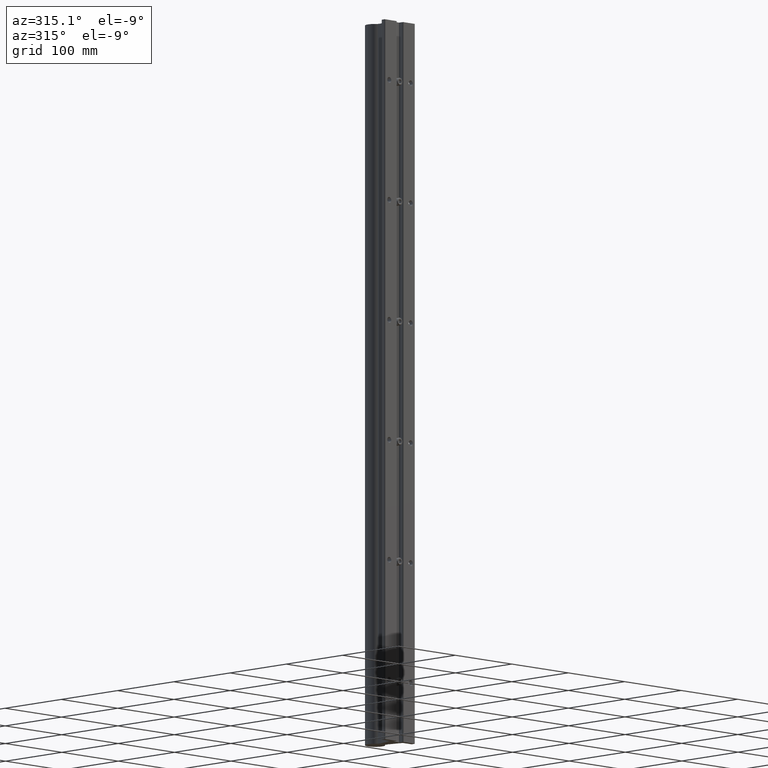
[diagram: clean part render]
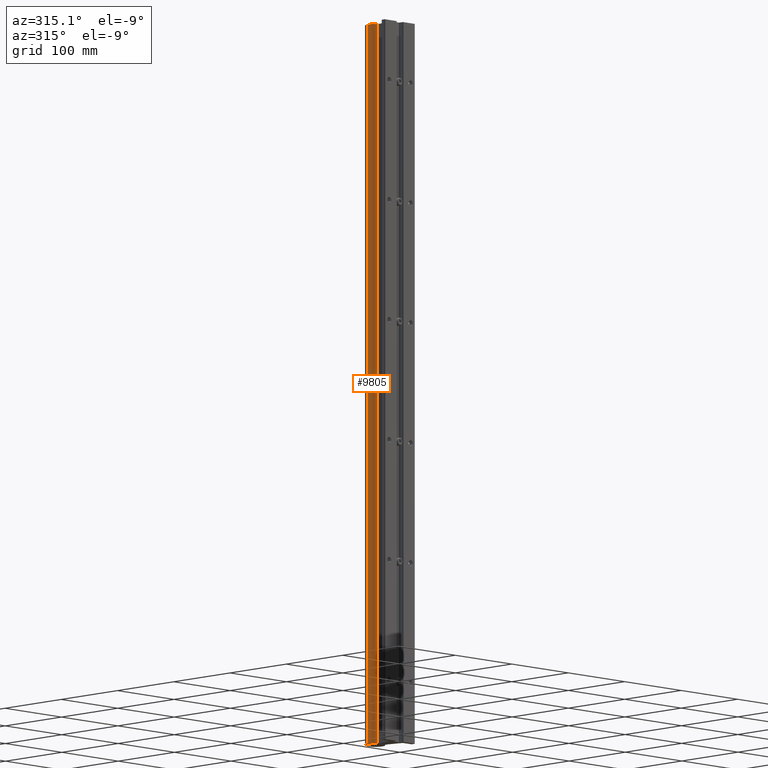
[diagram: same view with one face highlighted and labeled with its STEP entity id]
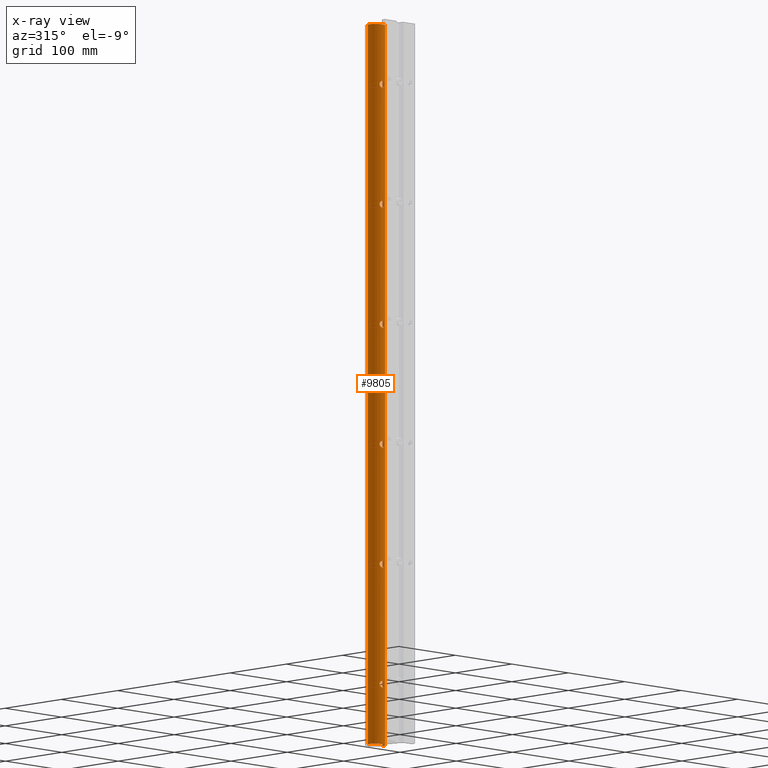
[diagram: x-ray of the same camera — body ghosted, the highlighted face saturated]
A machine part, auxiliary view. The second image highlights one B-rep face of the part: STEP entity #9805.
The next image is the same camera in x-ray: the body ghosted, the highlighted face saturated — about 0% of this face is hidden behind the body in this view.
In plain terms, the highlighted cylindrical surface (edge-blend (fillet) strip) has radius 12.7 mm, axis along (0, 0, 1).
Its self-contained STEP definition (entity closure, byte-faithful):
#4 = CARTESIAN_POINT ( 'NONE',  ( -0.1178406157585082242, 1.264028440204093995, -2.896511160095683213 ) ) ;
#57 = EDGE_CURVE ( 'NONE', #9999, #5945, #6915, .T. ) ;
#60 = CARTESIAN_POINT ( 'NONE',  ( 0.1514646482530656868, 1.273488789680645938, -9.040701736055424931 ) ) ;
#214 = CARTESIAN_POINT ( 'NONE',  ( -0.01025724752596621561, 1.249999999999999778, -2.843499999999999694 ) ) ;
#236 = CARTESIAN_POINT ( 'NONE',  ( -0.1034063837601288116, 1.260753755813636134, -14.88208702147456819 ) ) ;
#291 = CARTESIAN_POINT ( 'NONE',  ( -8.196081754135579170E-17, 1.250000000000000000, -3.156499999999999417 ) ) ;
#311 = CARTESIAN_POINT ( 'NONE',  ( 2.101067853164528571E-15, 1.249999999999999778, -14.84349999999999881 ) ) ;
#355 = VERTEX_POINT ( 'NONE', #7696 ) ;
#365 = AXIS2_PLACEMENT_3D ( 'NONE', #4199, #6528, #6309 ) ;
#369 = B_SPLINE_CURVE_WITH_KNOTS ( 'NONE', 3,
 ( #5827, #10268, #5685, #7218, #11482, #515, #751, #4642, #6157, #4961, #4711, #9233, #10483, #6513, #11835, #5247, #7416, #11689, #10704, #60, #951, #4183, #3271, #2113, #2245, #13737, #4112, #12581, #7564, #8319, #3007, #4041, #1164, #5177 ),
 .UNSPECIFIED., .F., .F.,
 ( 4, 2, 2, 2, 2, 2, 2, 2, 2, 2, 2, 2, 2, 2, 2, 2, 4 ),
 ( 0.01250706719454411538, 0.01328855145386468109, 0.01407003571318524854, 0.01485151997250581425, 0.01563300423182637996, 0.01641448849114694741, 0.01719597275046751139, 0.01797745700978807884, 0.01875894126910864282, 0.01954042552842921027, 0.02032190978774977425, 0.02110339404707034516, 0.02188487830639090914, 0.02266636256571147312, 0.02344784682503204057, 0.02422933108435260802, 0.02501081534367317200 ),
 .UNSPECIFIED. ) ;
#376 = VERTEX_POINT ( 'NONE', #10829 ) ;
#385 = CARTESIAN_POINT ( 'NONE',  ( -0.01041085814125163739, 1.249999999999999778, -15.15649999999999231 ) ) ;
#396 = CARTESIAN_POINT ( 'NONE',  ( 0.06952565123151821513, 1.254766182063603130, -2.859419500684037274 ) ) ;
#451 = CARTESIAN_POINT ( 'NONE',  ( -0.07859880021001178219, 1.256141287737158052, -15.13571548614485529 ) ) ;
#472 = B_SPLINE_CURVE_WITH_KNOTS ( 'NONE', 3,
 ( #4205, #7239, #8343, #9382, #11503, #3992, #844, #1939, #6181, #7170, #8485, #2009, #13609, #6248, #10436, #8274, #12530, #11426, #12737, #6103, #4062, #11577, #12605, #975, #5198, #9445, #6316, #7377, #13682, #4135, #10582, #1041, #5264, #3161 ),
 .UNSPECIFIED., .F., .F.,
 ( 4, 2, 2, 2, 2, 2, 2, 2, 2, 2, 2, 2, 2, 2, 2, 2, 4 ),
 ( 4.790945391493840901E-18, 0.0007816916996590133910, 0.001563383399318022011, 0.002345075098977030415, 0.003126766798636039252, 0.003908458498295048524, 0.004690150197954056493, 0.005471841897613065331, 0.006253533597272074168, 0.007035225296931083006, 0.007816916996590091843, 0.008598608696249100680, 0.009380300395908107783, 0.01016199209556711662, 0.01094368379522612546, 0.01172537549488513429, 0.01250706719454414313 ),
 .UNSPECIFIED. ) ;
#501 = EDGE_CURVE ( 'NONE', #3565, #376, #8541, .T. ) ;
#515 = CARTESIAN_POINT ( 'NONE',  ( 0.06952565123151799309, 1.254766182063602908, -8.859419500684031945 ) ) ;
#520 = CARTESIAN_POINT ( 'NONE',  ( 0.04086650447296551886, 1.251569018025717961, -26.84857532027489668 ) ) ;
#533 = CARTESIAN_POINT ( 'NONE',  ( -0.09557294541033080348, 1.259144068898282232, -26.87565508353720389 ) ) ;
#564 = EDGE_CURVE ( 'NONE', #8241, #6719, #2088, .T. ) ;
#616 = CARTESIAN_POINT ( 'NONE',  ( -0.1405791870913257469, 1.270151909297080328, -21.06952293869874282 ) ) ;
#683 = CARTESIAN_POINT ( 'NONE',  ( -0.04072955494209304361, 1.251560002186336895, -21.15145406903309322 ) ) ;
#712 = CARTESIAN_POINT ( 'NONE',  ( 0.07859642925546669878, 1.256141075875272017, -27.13571597063193863 ) ) ;
#736 = CARTESIAN_POINT ( 'NONE',  ( 0.1034388360803593782, 1.260760536231932738, -20.88211457586994158 ) ) ;
#751 = CARTESIAN_POINT ( 'NONE',  ( 0.07868335296973141824, 1.256155164790862200, -8.864335404507160732 ) ) ;
#769 = CARTESIAN_POINT ( 'NONE',  ( 0.1554904432202414699, 1.274787210507110968, -27.02051567828572942 ) ) ;
#777 = CARTESIAN_POINT ( 'NONE',  ( -0.05070669661409964168, 1.252486482524820754, -9.148412155886937569 ) ) ;
#785 = CARTESIAN_POINT ( 'NONE',  ( -0.1243271559051695452, 1.265667634256130381, -27.09560697465091650 ) ) ;
#791 = CARTESIAN_POINT ( 'NONE',  ( 0.1244033045994818593, 1.265688150019277591, -32.90450683583762270 ) ) ;
#842 = CARTESIAN_POINT ( 'NONE',  ( 0.1514646482530662419, 1.273488789680646827, -15.04070173605542315 ) ) ;
#844 = CARTESIAN_POINT ( 'NONE',  ( -0.07859880021000974215, 1.256141287737158052, -33.13571548614484641 ) ) ;
#861 = CARTESIAN_POINT ( 'NONE',  ( 0.1554904432202414699, 1.274787210507110968, -33.02051567828571166 ) ) ;
#864 = VERTEX_POINT ( 'NONE', #9384 ) ;
#895 = ORIENTED_EDGE ( 'NONE', *, *, #13136, .F. ) ;
#906 = CARTESIAN_POINT ( 'NONE',  ( 0.05075370098592649898, 1.252491623421628786, -15.14839479271959810 ) ) ;
#912 = CARTESIAN_POINT ( 'NONE',  ( 0.1405814577952105016, 1.270152509823489595, -3.069521682105984084 ) ) ;
#914 = CARTESIAN_POINT ( 'NONE',  ( -0.1034063837601280900, 1.260753755813636134, -8.882087021474569966 ) ) ;
#926 = CARTESIAN_POINT ( 'NONE',  ( 0.02064213769754207756, 1.250324616063695160, -33.15547156390899630 ) ) ;
#930 = CARTESIAN_POINT ( 'NONE',  ( 0.1035280489591251241, 1.260780212130743649, -21.11780100056908793 ) ) ;
#951 = CARTESIAN_POINT ( 'NONE',  ( 0.1484198940517174325, 1.272518801255799081, -9.050674901167628406 ) ) ;
#972 = CARTESIAN_POINT ( 'NONE',  ( 0.1178830997218138499, 1.264038663556757092, -14.89655851493738048 ) ) ;
#975 = CARTESIAN_POINT ( 'NONE',  ( -0.1243799828838272753, 1.265682033343105806, -32.90447476161844520 ) ) ;
#1036 = FACE_BOUND ( 'NONE', #12386, .T. ) ;
#1041 = CARTESIAN_POINT ( 'NONE',  ( -0.02063932115101448778, 1.250323351658012339, -32.84452419570753534 ) ) ;
#1071 = CARTESIAN_POINT ( 'NONE',  ( 0.05075370098592741491, 1.252491623421628786, -21.14839479271958922 ) ) ;
#1120 = CARTESIAN_POINT ( 'NONE',  ( -0.1514432164739248077, 1.273481935867222692, -9.040787736699337884 ) ) ;
#1146 = CARTESIAN_POINT ( 'NONE',  ( 2.101067853054212290E-15, 1.249999999999999778, -20.84349999999999525 ) ) ;
#1164 = CARTESIAN_POINT ( 'NONE',  ( 0.01040809537437410379, 1.250000000000000222, -9.156499999999999417 ) ) ;
#1174 = CARTESIAN_POINT ( 'NONE',  ( -0.1484625484838921483, 1.272531726863997514, -2.949430081437836915 ) ) ;
#1189 = CARTESIAN_POINT ( 'NONE',  ( -0.1356857239005710147, 1.268727044912736801, -14.92135627399715503 ) ) ;
#1220 = CARTESIAN_POINT ( 'NONE',  ( -1.942672101824457373E-16, 1.250000000000000000, -27.15650000000000119 ) ) ;
#1224 = CARTESIAN_POINT ( 'NONE',  ( 0.000000000000000000, 1.750000000000000000, -36.00000000000000000 ) ) ;
#1279 = CARTESIAN_POINT ( 'NONE',  ( 0.000000000000000000, 1.750000000000000000, 0.000000000000000000 ) ) ;
#1289 = CARTESIAN_POINT ( 'NONE',  ( 2.101067853054212290E-15, 1.249999999999999778, -20.84349999999999525 ) ) ;
#1295 = CARTESIAN_POINT ( 'NONE',  ( -0.1034063837601284508, 1.260753755813636134, -2.882087021474569521 ) ) ;
#1420 = DIRECTION ( 'NONE',  ( 0.000000000000000000, 0.000000000000000000, 1.000000000000000000 ) ) ;
#1524 = CARTESIAN_POINT ( 'NONE',  ( 0.06952565123151815962, 1.254766182063603353, -26.85941950068404083 ) ) ;
#1541 = CARTESIAN_POINT ( 'NONE',  ( -0.1514432164739250020, 1.273481935867222914, -27.04078773669933966 ) ) ;
#1595 = CARTESIAN_POINT ( 'NONE',  ( 0.02064213769754207756, 1.250324616063695160, -27.15547156390901051 ) ) ;
#1609 = CARTESIAN_POINT ( 'NONE',  ( -0.09556328476573421049, 1.259141713243884242, -27.12435482772603024 ) ) ;
#1665 = CARTESIAN_POINT ( 'NONE',  ( 0.1564999516228305632, 1.275123421148132152, -26.98968554117874064 ) ) ;
#1681 = CARTESIAN_POINT ( 'NONE',  ( -0.1034063837601268826, 1.260753755813635690, -26.88208702147456464 ) ) ;
#1691 = CARTESIAN_POINT ( 'NONE',  ( 0.02055646357326336437, 1.250319155074914645, -20.84451065431017369 ) ) ;
#1733 = AXIS2_PLACEMENT_3D ( 'NONE', #1279, #3611, #7710 ) ;
#1735 = CARTESIAN_POINT ( 'NONE',  ( 0.1357558474040482521, 1.268746003186348448, -27.07853782208754367 ) ) ;
#1751 = CARTESIAN_POINT ( 'NONE',  ( -0.1356857239005700433, 1.268727044912736357, -26.92135627399716213 ) ) ;
#1759 = ORIENTED_EDGE ( 'NONE', *, *, #57, .T. ) ;
#1767 = CARTESIAN_POINT ( 'NONE',  ( -0.1554870185490529744, 1.274786047844190362, -21.02055418068784576 ) ) ;
#1803 = CARTESIAN_POINT ( 'NONE',  ( 0.1178679316663036047, 1.264035795095121539, -3.103451840684775753 ) ) ;
#1817 = CARTESIAN_POINT ( 'NONE',  ( 0.06952565123151815962, 1.254766182063603353, -32.85941950068403372 ) ) ;
#1836 = CARTESIAN_POINT ( 'NONE',  ( -0.02063512757121567856, 1.250324585779543529, -21.15547161535978660 ) ) ;
#1866 = CARTESIAN_POINT ( 'NONE',  ( 0.1554580701843658042, 1.274776625798298646, -14.97926953882025103 ) ) ;
#1872 = CARTESIAN_POINT ( 'NONE',  ( -0.1243799828838284272, 1.265682033343106694, -8.904474761618457634 ) ) ;
#1885 = CARTESIAN_POINT ( 'NONE',  ( 0.1565000483737305215, 1.275123453033293330, -33.01031299072741376 ) ) ;
#1901 = CARTESIAN_POINT ( 'NONE',  ( -0.04087253725953229888, 1.251570295654617748, -20.84857958197148520 ) ) ;
#1937 = CARTESIAN_POINT ( 'NONE',  ( 0.1178679316663031468, 1.264035795095121539, -15.10345184068477487 ) ) ;
#1939 = CARTESIAN_POINT ( 'NONE',  ( -0.09556328476573421049, 1.259141713243884242, -33.12435482772602313 ) ) ;
#1958 = CARTESIAN_POINT ( 'NONE',  ( 0.09554229024632261702, 1.259137792854418958, -33.12436998894735041 ) ) ;
#1963 = CARTESIAN_POINT ( 'NONE',  ( 0.01040809537437405001, 1.250000000000000222, -21.15650000000000119 ) ) ;
#1973 = CARTESIAN_POINT ( 'NONE',  ( -0.06949739479790366381, 1.254762348453770882, -20.85940611100637554 ) ) ;
#2008 = CARTESIAN_POINT ( 'NONE',  ( 0.1484607547724579590, 1.272531118639974146, -14.94942246475074121 ) ) ;
#2009 = CARTESIAN_POINT ( 'NONE',  ( -0.1357655045532583094, 1.268748703922866206, -33.07852173629490267 ) ) ;
#2029 = EDGE_LOOP ( 'NONE', ( #6135, #10550, #4209, #895 ) ) ;
#2079 = CARTESIAN_POINT ( 'NONE',  ( -0.06963320848488399606, 1.254780770336873408, -9.140529546262069260 ) ) ;
#2088 = LINE ( 'NONE', #6342, #6292 ) ;
#2113 = CARTESIAN_POINT ( 'NONE',  ( 0.1243211416543388154, 1.265666113831307893, -9.095614294644716935 ) ) ;
#2126 = CARTESIAN_POINT ( 'NONE',  ( -0.06949739479790265073, 1.254762348453770437, -2.859406111006373319 ) ) ;
#2128 = FACE_OUTER_BOUND ( 'NONE', #2029, .T. ) ;
#2141 = CARTESIAN_POINT ( 'NONE',  ( -0.1565048378191059575, 1.275125031439485079, -8.989792767501070259 ) ) ;
#2245 = CARTESIAN_POINT ( 'NONE',  ( 0.1178679316663040350, 1.264035795095121539, -9.103451840684776641 ) ) ;
#2247 = CARTESIAN_POINT ( 'NONE',  ( 0.09560078652235465269, 1.259149431177259970, -14.87567605974269114 ) ) ;
#2260 = CARTESIAN_POINT ( 'NONE',  ( -0.1243799828838284688, 1.265682033343106694, -2.904474761618458079 ) ) ;
#2278 = CARTESIAN_POINT ( 'NONE',  ( -0.1565048378191059020, 1.275125031439485079, -14.98979276750107381 ) ) ;
#2352 = CARTESIAN_POINT ( 'NONE',  ( -0.01025724752596618612, 1.249999999999999778, -14.84350000000000414 ) ) ;
#2395 = EDGE_CURVE ( 'NONE', #10339, #13125, #8354, .T. ) ;
#2403 = CARTESIAN_POINT ( 'NONE',  ( -0.1405791870913261077, 1.270151909297080550, -3.069522938698746373 ) ) ;
#2422 = CARTESIAN_POINT ( 'NONE',  ( -0.07866204735017254257, 1.256151829709960754, -14.86432344177705289 ) ) ;
#2557 = CARTESIAN_POINT ( 'NONE',  ( 0.1484607547724579313, 1.272531118639973924, -26.94942246475074299 ) ) ;
#2562 = CARTESIAN_POINT ( 'NONE',  ( 0.1405366595157273302, 1.270139003765712316, -2.930371484924218617 ) ) ;
#2572 = CARTESIAN_POINT ( 'NONE',  ( -0.1035399364845294296, 1.260782774289252117, -27.11779025189875014 ) ) ;
#2583 = LINE ( 'NONE', #5579, #9837 ) ;
#2630 = CARTESIAN_POINT ( 'NONE',  ( 0.1514646482530661031, 1.273488789680646605, -3.040701736055423599 ) ) ;
#2639 = CARTESIAN_POINT ( 'NONE',  ( -0.01025724752596624684, 1.249999999999999778, -26.84349999999999881 ) ) ;
#2692 = CARTESIAN_POINT ( 'NONE',  ( 0.02055646357326355519, 1.250319155074914645, -2.844510654310176356 ) ) ;
#2722 = CARTESIAN_POINT ( 'NONE',  ( -0.1484625484838912601, 1.272531726863997514, -20.94943008143783558 ) ) ;
#2763 = CARTESIAN_POINT ( 'NONE',  ( 0.04086650447296554661, 1.251569018025717961, -2.848575320274898459 ) ) ;
#2772 = CARTESIAN_POINT ( 'NONE',  ( -0.04072955494209304361, 1.251560002186336895, -27.15145406903309322 ) ) ;
#2789 = CARTESIAN_POINT ( 'NONE',  ( -0.1035399364845294296, 1.260782774289252117, -21.11779025189873948 ) ) ;
#2824 = CARTESIAN_POINT ( 'NONE',  ( 0.02055646357326336437, 1.250319155074914645, -26.84451065431018435 ) ) ;
#2839 = CARTESIAN_POINT ( 'NONE',  ( -0.1565048378191056799, 1.275125031439485523, -26.98979276750107559 ) ) ;
#2893 = CARTESIAN_POINT ( 'NONE',  ( 0.05065284700690732278, 1.252481518235631697, -14.85157162650899032 ) ) ;
#2901 = CARTESIAN_POINT ( 'NONE',  ( 0.04076219009262842252, 1.251562410105868883, -3.151446191407679898 ) ) ;
#2902 = CARTESIAN_POINT ( 'NONE',  ( -0.1243271559051704334, 1.265667634256130603, -9.095606974650911170 ) ) ;
#2931 = VERTEX_POINT ( 'NONE', #3344 ) ;
#2957 = CARTESIAN_POINT ( 'NONE',  ( 0.07868335296973211213, 1.256155164790861978, -14.86433540450716251 ) ) ;
#2978 = EDGE_LOOP ( 'NONE', ( #8011, #8530 ) ) ;
#2980 = CARTESIAN_POINT ( 'NONE',  ( 0.1178679316663034105, 1.264035795095121095, -33.10345184068476954 ) ) ;
#3007 = CARTESIAN_POINT ( 'NONE',  ( 0.04076219009262815191, 1.251562410105868883, -9.151446191407679009 ) ) ;
#3025 = CARTESIAN_POINT ( 'NONE',  ( 0.01025452552329445509, 1.250000000000000000, -14.84349999999999881 ) ) ;
#3030 = CARTESIAN_POINT ( 'NONE',  ( 0.1035280489591252906, 1.260780212130743649, -3.117801000569084824 ) ) ;
#3083 = ORIENTED_EDGE ( 'NONE', *, *, #5217, .T. ) ;
#3101 = CARTESIAN_POINT ( 'NONE',  ( -0.1035399364845299847, 1.260782774289252561, -9.117790251898744813 ) ) ;
#3111 = CARTESIAN_POINT ( 'NONE',  ( 0.09560078652235348695, 1.259149431177259970, -32.87567605974268758 ) ) ;
#3161 = CARTESIAN_POINT ( 'NONE',  ( 2.101067853054212290E-15, 1.249999999999999778, -32.84349999999999170 ) ) ;
#3169 = CARTESIAN_POINT ( 'NONE',  ( -0.02063932115101512615, 1.250323351658012783, -8.844524195707544223 ) ) ;
#3220 = CARTESIAN_POINT ( 'NONE',  ( -0.1514432164739248077, 1.273481935867222692, -3.040787736699337440 ) ) ;
#3271 = CARTESIAN_POINT ( 'NONE',  ( 0.1357558474040492513, 1.268746003186348670, -9.078537822087536568 ) ) ;
#3273 = CARTESIAN_POINT ( 'NONE',  ( 0.1514350073922275663, 1.273479375567842187, -14.95920291502707578 ) ) ;
#3285 = CARTESIAN_POINT ( 'NONE',  ( -0.1564951272782237335, 1.275121831240573211, -3.010355046800683887 ) ) ;
#3307 = CARTESIAN_POINT ( 'NONE',  ( -0.09556328476573608399, 1.259141713243884686, -15.12435482772602668 ) ) ;
#3344 = CARTESIAN_POINT ( 'NONE',  ( 2.101067853054212290E-15, 1.249999999999999778, -26.84349999999999881 ) ) ;
#3349 = CARTESIAN_POINT ( 'NONE',  ( 0.06952565123151853432, 1.254766182063603353, -14.85941950068403727 ) ) ;
#3370 = CARTESIAN_POINT ( 'NONE',  ( -0.05070669661409979434, 1.252486482524820977, -15.14841215588693935 ) ) ;
#3466 = B_SPLINE_CURVE_WITH_KNOTS ( 'NONE', 3,
 ( #291, #4338, #7727, #13004, #11706, #8743, #6454, #6605, #12801, #9791, #5397, #12870, #2403, #9579, #3220, #7506, #3285, #5526, #7578, #10860, #1174, #11846, #4473, #2260, #4, #1295, #5464, #6385, #2126, #6527, #10786, #9723, #214, #4411 ),
 .UNSPECIFIED., .F., .F.,
 ( 4, 2, 2, 2, 2, 2, 2, 2, 2, 2, 2, 2, 2, 2, 2, 2, 4 ),
 ( 2.021287075230293743E-18, 0.0007816916996590075363, 0.001563383399318012904, 0.002345075098977018706, 0.003126766798636024074, 0.003908458498295029442, 0.004690150197954034809, 0.005471841897613040177, 0.006253533597272045545, 0.007035225296931050913, 0.007816916996590057148, 0.008598608696249062516, 0.009380300395908067884, 0.01016199209556707325, 0.01094368379522607862, 0.01172537549488508399, 0.01250706719454408936 ),
 .UNSPECIFIED. ) ;
#3516 = CARTESIAN_POINT ( 'NONE',  ( -0.1357655045532590310, 1.268748703922866650, -15.07852173629491510 ) ) ;
#3520 = CARTESIAN_POINT ( 'NONE',  ( 2.101067853054212290E-15, 1.249999999999999778, -26.84349999999999881 ) ) ;
#3565 = VERTEX_POINT ( 'NONE', #12144 ) ;
#3587 = CARTESIAN_POINT ( 'NONE',  ( 0.1178830997218137805, 1.264038663556757758, -2.896558514937383144 ) ) ;
#3594 = CARTESIAN_POINT ( 'NONE',  ( -0.1357655045532583094, 1.268748703922866206, -27.07852173629490977 ) ) ;
#3611 = DIRECTION ( 'NONE',  ( 0.000000000000000000, 0.000000000000000000, 1.000000000000000000 ) ) ;
#3665 = EDGE_CURVE ( 'NONE', #13125, #10339, #369, .T. ) ;
#3743 = CARTESIAN_POINT ( 'NONE',  ( 0.05065284700690701747, 1.252481518235631697, -20.85157162650898854 ) ) ;
#3753 = CARTESIAN_POINT ( 'NONE',  ( -0.1554704722570752484, 1.274780669119014220, -20.97934747421100354 ) ) ;
#3800 = CARTESIAN_POINT ( 'NONE',  ( -0.1178406157585067809, 1.264028440204093995, -26.89651116009568810 ) ) ;
#3820 = EDGE_CURVE ( 'NONE', #5945, #9999, #9974, .T. ) ;
#3821 = CARTESIAN_POINT ( 'NONE',  ( -0.07859880021000974215, 1.256141287737158052, -21.13571548614484996 ) ) ;
#3859 = CARTESIAN_POINT ( 'NONE',  ( 0.06964398895624185348, 1.254782635874228225, -3.140522836123970762 ) ) ;
#3885 = CARTESIAN_POINT ( 'NONE',  ( -0.1514414893444170629, 1.273481421671772473, -20.95921924632319389 ) ) ;
#3921 = CARTESIAN_POINT ( 'NONE',  ( 0.1356887000389163378, 1.268728011506206510, -14.92136347363493876 ) ) ;
#3925 = CARTESIAN_POINT ( 'NONE',  ( 0.1034388360803593782, 1.260760536231932738, -26.88211457586994513 ) ) ;
#3932 = CARTESIAN_POINT ( 'NONE',  ( -0.06949739479790262298, 1.254762348453770437, -8.859406111006373763 ) ) ;
#3949 = CARTESIAN_POINT ( 'NONE',  ( 0.1514350073922274276, 1.273479375567842187, -32.95920291502706334 ) ) ;
#3988 = EDGE_CURVE ( 'NONE', #10693, #2931, #6471, .T. ) ;
#3991 = CARTESIAN_POINT ( 'NONE',  ( 0.1243211416543390929, 1.265666113831308115, -15.09561429464471516 ) ) ;
#3992 = CARTESIAN_POINT ( 'NONE',  ( -0.06963320848488457893, 1.254780770336873186, -33.14052954626205860 ) ) ;
#4018 = CARTESIAN_POINT ( 'NONE',  ( 0.02064213769754207756, 1.250324616063695160, -21.15547156390901407 ) ) ;
#4041 = CARTESIAN_POINT ( 'NONE',  ( 0.02064213769754179653, 1.250324616063695382, -9.155471563909012289 ) ) ;
#4062 = CARTESIAN_POINT ( 'NONE',  ( -0.1484625484838912601, 1.272531726863997514, -32.94943008143783203 ) ) ;
#4085 = CARTESIAN_POINT ( 'NONE',  ( 0.05075370098592741491, 1.252491623421628786, -33.14839479271959277 ) ) ;
#4088 = CARTESIAN_POINT ( 'NONE',  ( 0.1484198940517177379, 1.272518801255799081, -21.05067490116762485 ) ) ;
#4112 = CARTESIAN_POINT ( 'NONE',  ( 0.09554229024632142353, 1.259137792854418736, -9.124369988947355736 ) ) ;
#4124 = CARTESIAN_POINT ( 'NONE',  ( -8.196081754135579170E-17, 1.250000000000000000, -3.156499999999999417 ) ) ;
#4135 = CARTESIAN_POINT ( 'NONE',  ( -0.05063820119978877654, 1.252480159217775446, -32.85156717989171682 ) ) ;
#4183 = CARTESIAN_POINT ( 'NONE',  ( 0.1405814577952108346, 1.270152509823490261, -9.069521682105984084 ) ) ;
#4199 = CARTESIAN_POINT ( 'NONE',  ( 0.000000000000000000, 1.750000000000000000, -36.00000000000000000 ) ) ;
#4205 = CARTESIAN_POINT ( 'NONE',  ( -1.942672101824457373E-16, 1.250000000000000000, -33.15649999999999409 ) ) ;
#4209 = ORIENTED_EDGE ( 'NONE', *, *, #564, .T. ) ;
#4228 = DIRECTION ( 'NONE',  ( 0.000000000000000000, 0.000000000000000000, 1.000000000000000000 ) ) ;
#4242 = CARTESIAN_POINT ( 'NONE',  ( -0.1243799828838272753, 1.265682033343105806, -20.90447476161845586 ) ) ;
#4338 = CARTESIAN_POINT ( 'NONE',  ( -0.01041085814125160269, 1.249999999999999778, -3.156499999999998973 ) ) ;
#4356 = CARTESIAN_POINT ( 'NONE',  ( -0.1405496522177391017, 1.270142859368248445, -14.93039942365764006 ) ) ;
#4401 = CARTESIAN_POINT ( 'NONE',  ( 0.1244033045994815262, 1.265688150019277591, -14.90450683583762093 ) ) ;
#4411 = CARTESIAN_POINT ( 'NONE',  ( 2.101067853136701108E-15, 1.249999999999999778, -2.843499999999999694 ) ) ;
#4429 = CARTESIAN_POINT ( 'NONE',  ( -0.09557294541033123370, 1.259144068898282454, -14.87565508353720745 ) ) ;
#4473 = CARTESIAN_POINT ( 'NONE',  ( -0.1356857239005710980, 1.268727044912736579, -2.921356273997158137 ) ) ;
#4580 = CARTESIAN_POINT ( 'NONE',  ( 0.1034388360803589341, 1.260760536231932516, -2.882114575869943796 ) ) ;
#4614 = B_SPLINE_CURVE_WITH_KNOTS ( 'NONE', 3,
 ( #3520, #11224, #2824, #520, #6833, #1524, #10218, #4714, #3925, #11293, #6035, #11089, #10288, #2557, #12340, #13229, #1665, #5980, #769, #13485, #13351, #9179, #1735, #5763, #10022, #5831, #9045, #712, #4984, #12149, #7104, #1595, #11356, #4780 ),
 .UNSPECIFIED., .F., .F.,
 ( 4, 2, 2, 2, 2, 2, 2, 2, 2, 2, 2, 2, 2, 2, 2, 2, 4 ),
 ( 0.01250706719454414313, 0.01328855145386471058, 0.01407003571318527629, 0.01485151997250584374, 0.01563300423182641119, 0.01641448849114697864, 0.01719597275046754609, 0.01797745700978811006, 0.01875894126910867751, 0.01954042552842924496, 0.02032190978774981241, 0.02110339404707037986, 0.02188487830639094384, 0.02266636256571151475, 0.02344784682503207873, 0.02422933108435264618, 0.02501081534367321363 ),
 .UNSPECIFIED. ) ;
#4642 = CARTESIAN_POINT ( 'NONE',  ( 0.09560078652235397267, 1.259149431177259748, -8.875676059742689361 ) ) ;
#4652 = CARTESIAN_POINT ( 'NONE',  ( 0.05065284700690694808, 1.252481518235632141, -2.851571626508989876 ) ) ;
#4711 = CARTESIAN_POINT ( 'NONE',  ( 0.1244033045994823311, 1.265688150019278257, -8.904506835837624479 ) ) ;
#4714 = CARTESIAN_POINT ( 'NONE',  ( 0.09560078652235348695, 1.259149431177259970, -26.87567605974269114 ) ) ;
#4719 = CARTESIAN_POINT ( 'NONE',  ( 0.09560078652235430574, 1.259149431177260192, -2.875676059742692914 ) ) ;
#4727 = CARTESIAN_POINT ( 'NONE',  ( -0.02063512757121567856, 1.250324585779543529, -27.15547161535979370 ) ) ;
#4780 = CARTESIAN_POINT ( 'NONE',  ( -1.942672101824457373E-16, 1.250000000000000000, -27.15650000000000119 ) ) ;
#4859 = CARTESIAN_POINT ( 'NONE',  ( 1.459118586485259365E-16, 1.250000000000000000, -15.15649999999999942 ) ) ;
#4863 = CARTESIAN_POINT ( 'NONE',  ( -0.1178737392740391576, 1.264037250430759096, -27.10344488135788765 ) ) ;
#4922 = CARTESIAN_POINT ( 'NONE',  ( -0.02063512757121541835, 1.250324585779543529, -9.155471615359788373 ) ) ;
#4950 = CARTESIAN_POINT ( 'NONE',  ( -0.1564951272782239000, 1.275121831240573211, -21.01035504680067589 ) ) ;
#4961 = CARTESIAN_POINT ( 'NONE',  ( 0.1178830997218135168, 1.264038663556757092, -8.896558514937384032 ) ) ;
#4984 = CARTESIAN_POINT ( 'NONE',  ( 0.06964398895624233921, 1.254782635874228225, -27.14052283612397432 ) ) ;
#5003 = CARTESIAN_POINT ( 'NONE',  ( 0.02055646357326336437, 1.250319155074914645, -32.84451065431018435 ) ) ;
#5010 = CARTESIAN_POINT ( 'NONE',  ( 0.06964398895624233921, 1.254782635874228225, -21.14052283612396721 ) ) ;
#5029 = CIRCLE ( 'NONE', #10836, 0.5000000000000000000 ) ;
#5045 = EDGE_LOOP ( 'NONE', ( #7345, #6894 ) ) ;
#5081 = CARTESIAN_POINT ( 'NONE',  ( 0.1405814577952111677, 1.270152509823490039, -33.06952168210597875 ) ) ;
#5130 = CARTESIAN_POINT ( 'NONE',  ( 0.04076219009262856824, 1.251562410105868883, -15.15144619140767723 ) ) ;
#5177 = CARTESIAN_POINT ( 'NONE',  ( -2.094411209430302873E-16, 1.250000000000000000, -9.156499999999999417 ) ) ;
#5198 = CARTESIAN_POINT ( 'NONE',  ( -0.1178406157585067809, 1.264028440204093995, -32.89651116009567744 ) ) ;
#5204 = CARTESIAN_POINT ( 'NONE',  ( -0.1514414893444177290, 1.273481421671772917, -8.959219246323204544 ) ) ;
#5217 = EDGE_CURVE ( 'NONE', #376, #3565, #472, .T. ) ;
#5222 = CARTESIAN_POINT ( 'NONE',  ( 0.1564999516228305632, 1.275123421148132152, -32.98968554117872998 ) ) ;
#5247 = CARTESIAN_POINT ( 'NONE',  ( 0.1554580701843658597, 1.274776625798299312, -8.979269538820252805 ) ) ;
#5264 = CARTESIAN_POINT ( 'NONE',  ( -0.01025724752596624684, 1.249999999999999778, -32.84349999999999881 ) ) ;
#5285 = CARTESIAN_POINT ( 'NONE',  ( 2.101067853054212290E-15, 1.249999999999999778, -32.84349999999999170 ) ) ;
#5342 = CARTESIAN_POINT ( 'NONE',  ( -0.1554704722570755260, 1.274780669119014442, -8.979347474211012425 ) ) ;
#5397 = CARTESIAN_POINT ( 'NONE',  ( -0.1243271559051700725, 1.265667634256130603, -3.095606974650912058 ) ) ;
#5414 = CARTESIAN_POINT ( 'NONE',  ( -0.06949739479790277563, 1.254762348453770437, -14.85940611100637199 ) ) ;
#5449 = CARTESIAN_POINT ( 'NONE',  ( 2.101067853164528571E-15, 1.249999999999999778, -8.843499999999998806 ) ) ;
#5452 = CARTESIAN_POINT ( 'NONE',  ( 0.1565000483737302439, 1.275123453033292886, -15.01031299072742264 ) ) ;
#5464 = CARTESIAN_POINT ( 'NONE',  ( -0.09557294541033024837, 1.259144068898282232, -2.875655083537207002 ) ) ;
#5481 = CARTESIAN_POINT ( 'NONE',  ( 1.459118586485259365E-16, 1.250000000000000000, -15.15649999999999942 ) ) ;
#5501 = EDGE_LOOP ( 'NONE', ( #12067, #12215 ) ) ;
#5526 = CARTESIAN_POINT ( 'NONE',  ( -0.1565048378191059575, 1.275125031439485523, -2.989792767501073367 ) ) ;
#5569 = VERTEX_POINT ( 'NONE', #9535 ) ;
#5579 = CARTESIAN_POINT ( 'NONE',  ( -0.5000000000000000000, 1.750000000000000000, -36.00000000000000000 ) ) ;
#5621 = ORIENTED_EDGE ( 'NONE', *, *, #3665, .T. ) ;
#5622 = B_SPLINE_CURVE_WITH_KNOTS ( 'NONE', 3,
 ( #9252, #3025, #6246, #7304, #2893, #3349, #2957, #2247, #13483, #972, #4401, #3921, #11425, #2008, #3273, #1866, #6100, #5452, #10355, #842, #11500, #13545, #6515, #3991, #1937, #8273, #6177, #10434, #10508, #906, #5130, #8590, #9381, #13608 ),
 .UNSPECIFIED., .F., .F.,
 ( 4, 2, 2, 2, 2, 2, 2, 2, 2, 2, 2, 2, 2, 2, 2, 2, 4 ),
 ( 0.01250706719454406854, 0.01328855145386463078, 0.01407003571318519303, 0.01485151997250575354, 0.01563300423182631751, 0.01641448849114687802, 0.01719597275046744200, 0.01797745700978800251, 0.01875894126910856302, 0.01954042552842912700, 0.02032190978774969098, 0.02110339404707025149, 0.02188487830639081200, 0.02266636256571137598, 0.02344784682503193649, 0.02422933108435249699, 0.02501081534367306097 ),
 .UNSPECIFIED. ) ;
#5658 = CARTESIAN_POINT ( 'NONE',  ( 0.01025452552329456611, 1.250000000000000000, -20.84349999999999525 ) ) ;
#5685 = CARTESIAN_POINT ( 'NONE',  ( 0.02055646357326389173, 1.250319155074914645, -8.844510654310177244 ) ) ;
#5763 = CARTESIAN_POINT ( 'NONE',  ( 0.1243211416543377051, 1.265666113831308115, -27.09561429464471871 ) ) ;
#5771 = CARTESIAN_POINT ( 'NONE',  ( 0.1554580701843656376, 1.274776625798298646, -2.979269538820249696 ) ) ;
#5778 = CARTESIAN_POINT ( 'NONE',  ( -0.04087253725953229888, 1.251570295654617748, -26.84857958197149230 ) ) ;
#5827 = CARTESIAN_POINT ( 'NONE',  ( 2.101067853164528571E-15, 1.249999999999999778, -8.843499999999998806 ) ) ;
#5831 = CARTESIAN_POINT ( 'NONE',  ( 0.1035280489591251241, 1.260780212130743649, -27.11780100056908083 ) ) ;
#5844 = CARTESIAN_POINT ( 'NONE',  ( -0.07859880021000974215, 1.256141287737158052, -27.13571548614485351 ) ) ;
#5929 = CARTESIAN_POINT ( 'NONE',  ( 0.1405366595157266640, 1.270139003765712316, -20.93037148492421196 ) ) ;
#5945 = VERTEX_POINT ( 'NONE', #13460 ) ;
#5980 = CARTESIAN_POINT ( 'NONE',  ( 0.1565000483737305215, 1.275123453033293330, -27.01031299072741731 ) ) ;
#5985 = CARTESIAN_POINT ( 'NONE',  ( -8.196081754135579170E-17, 1.250000000000000000, -3.156499999999999417 ) ) ;
#5991 = CARTESIAN_POINT ( 'NONE',  ( -0.06949739479790366381, 1.254762348453770882, -26.85940611100638264 ) ) ;
#6035 = CARTESIAN_POINT ( 'NONE',  ( 0.1244033045994818593, 1.265688150019277591, -26.90450683583762626 ) ) ;
#6049 = CARTESIAN_POINT ( 'NONE',  ( -0.01041085814125162351, 1.249999999999999778, -27.15649999999999409 ) ) ;
#6053 = CARTESIAN_POINT ( 'NONE',  ( 0.1034388360803593782, 1.260760536231932738, -32.88211457586994158 ) ) ;
#6068 = CARTESIAN_POINT ( 'NONE',  ( -0.1178737392740391576, 1.264037250430759096, -21.10344488135787699 ) ) ;
#6100 = CARTESIAN_POINT ( 'NONE',  ( 0.1564999516228307852, 1.275123421148132152, -14.98968554117874064 ) ) ;
#6103 = CARTESIAN_POINT ( 'NONE',  ( -0.1514414893444170629, 1.273481421671772473, -32.95921924632319389 ) ) ;
#6135 = ORIENTED_EDGE ( 'NONE', *, *, #9238, .F. ) ;
#6142 = CARTESIAN_POINT ( 'NONE',  ( -0.09557294541033080348, 1.259144068898282232, -20.87565508353719679 ) ) ;
#6157 = CARTESIAN_POINT ( 'NONE',  ( 0.1034388360803587259, 1.260760536231932072, -8.882114575869943351 ) ) ;
#6177 = CARTESIAN_POINT ( 'NONE',  ( 0.09554229024632139577, 1.259137792854418958, -15.12436998894735396 ) ) ;
#6181 = CARTESIAN_POINT ( 'NONE',  ( -0.1035399364845294296, 1.260782774289252117, -33.11779025189874659 ) ) ;
#6203 = CARTESIAN_POINT ( 'NONE',  ( 0.04076219009262829068, 1.251562410105868883, -33.15144619140767901 ) ) ;
#6209 = CARTESIAN_POINT ( 'NONE',  ( -1.942672101824457373E-16, 1.250000000000000000, -21.15649999999999764 ) ) ;
#6246 = CARTESIAN_POINT ( 'NONE',  ( 0.02055646357326319784, 1.250319155074914645, -14.84451065431017724 ) ) ;
#6248 = CARTESIAN_POINT ( 'NONE',  ( -0.1484031328809072847, 1.272513656587304087, -33.05071939470951037 ) ) ;
#6260 = EDGE_CURVE ( 'NONE', #5569, #8208, #9546, .T. ) ;
#6292 = VECTOR ( 'NONE', #4228, 39.37007874015748143 ) ;
#6309 = DIRECTION ( 'NONE',  ( 1.000000000000000000, 0.000000000000000000, 0.000000000000000000 ) ) ;
#6316 = CARTESIAN_POINT ( 'NONE',  ( -0.09557294541033080348, 1.259144068898282232, -32.87565508353720389 ) ) ;
#6326 = CARTESIAN_POINT ( 'NONE',  ( -0.09557294541033013735, 1.259144068898282232, -8.875655083537205670 ) ) ;
#6342 = CARTESIAN_POINT ( 'NONE',  ( 0.5000000000000000000, 1.750000000000000000, -36.00000000000000000 ) ) ;
#6346 = CARTESIAN_POINT ( 'NONE',  ( 0.04076219009262829068, 1.251562410105868883, -21.15144619140767546 ) ) ;
#6385 = CARTESIAN_POINT ( 'NONE',  ( -0.07866204735017155725, 1.256151829709960754, -2.864323441777054224 ) ) ;
#6399 = CARTESIAN_POINT ( 'NONE',  ( -0.1484625484838919263, 1.272531726863998180, -8.949430081437837359 ) ) ;
#6454 = CARTESIAN_POINT ( 'NONE',  ( -0.07859880021001150463, 1.256141287737158052, -3.135715486144853514 ) ) ;
#6471 = B_SPLINE_CURVE_WITH_KNOTS ( 'NONE', 3,
 ( #11816, #6049, #4727, #2772, #8923, #10303, #5844, #1609, #2572, #4863, #785, #3594, #12162, #7053, #1541, #13173, #8091, #2839, #7888, #12293, #12419, #6848, #1751, #11106, #3800, #1681, #533, #8987, #5991, #12353, #5778, #10035, #2639, #10103 ),
 .UNSPECIFIED., .F., .F.,
 ( 4, 2, 2, 2, 2, 2, 2, 2, 2, 2, 2, 2, 2, 2, 2, 2, 4 ),
 ( 4.790945391493840901E-18, 0.0007816916996590133910, 0.001563383399318022011, 0.002345075098977030415, 0.003126766798636039252, 0.003908458498295048524, 0.004690150197954056493, 0.005471841897613065331, 0.006253533597272074168, 0.007035225296931083006, 0.007816916996590091843, 0.008598608696249100680, 0.009380300395908107783, 0.01016199209556711662, 0.01094368379522612546, 0.01172537549488513429, 0.01250706719454414313 ),
 .UNSPECIFIED. ) ;
#6513 = CARTESIAN_POINT ( 'NONE',  ( 0.1484607547724582644, 1.272531118639973702, -8.949422464750744766 ) ) ;
#6515 = CARTESIAN_POINT ( 'NONE',  ( 0.1357558474040493901, 1.268746003186348892, -15.07853782208754012 ) ) ;
#6527 = CARTESIAN_POINT ( 'NONE',  ( -0.05063820119978774958, 1.252480159217775446, -2.851567179891719039 ) ) ;
#6528 = DIRECTION ( 'NONE',  ( 0.000000000000000000, 0.000000000000000000, 1.000000000000000000 ) ) ;
#6542 = CARTESIAN_POINT ( 'NONE',  ( -0.1514432164739248632, 1.273481935867222914, -15.04078773669933611 ) ) ;
#6605 = CARTESIAN_POINT ( 'NONE',  ( -0.09556328476573582031, 1.259141713243884686, -3.124354827726028017 ) ) ;
#6626 = CARTESIAN_POINT ( 'NONE',  ( -0.1405791870913257191, 1.270151909297080328, -15.06952293869874993 ) ) ;
#6719 = VERTEX_POINT ( 'NONE', #11121 ) ;
#6760 = CARTESIAN_POINT ( 'NONE',  ( -0.05063820119978777734, 1.252480159217775668, -14.85156717989171682 ) ) ;
#6833 = CARTESIAN_POINT ( 'NONE',  ( 0.05065284700690701747, 1.252481518235631697, -26.85157162650899210 ) ) ;
#6841 = CARTESIAN_POINT ( 'NONE',  ( 0.1484607547724582644, 1.272531118639973702, -2.949422464750743433 ) ) ;
#6848 = CARTESIAN_POINT ( 'NONE',  ( -0.1405496522177381857, 1.270142859368248445, -26.93039942365763650 ) ) ;
#6894 = ORIENTED_EDGE ( 'NONE', *, *, #10713, .T. ) ;
#6915 = B_SPLINE_CURVE_WITH_KNOTS ( 'NONE', 3,
 ( #1289, #5658, #1691, #13318, #3743, #8036, #12302, #10246, #736, #6986, #12934, #11244, #5929, #10176, #13377, #7262, #9277, #11599, #11665, #13637, #4088, #8237, #13571, #8170, #8438, #930, #7334, #7395, #5010, #1071, #6346, #4018, #1963, #6209 ),
 .UNSPECIFIED., .F., .F.,
 ( 4, 2, 2, 2, 2, 2, 2, 2, 2, 2, 2, 2, 2, 2, 2, 2, 4 ),
 ( 0.01250706719454414313, 0.01328855145386471058, 0.01407003571318527629, 0.01485151997250584374, 0.01563300423182641119, 0.01641448849114697864, 0.01719597275046754609, 0.01797745700978811006, 0.01875894126910867751, 0.01954042552842924496, 0.02032190978774981241, 0.02110339404707037986, 0.02188487830639094384, 0.02266636256571151475, 0.02344784682503207873, 0.02422933108435264618, 0.02501081534367321363 ),
 .UNSPECIFIED. ) ;
#6986 = CARTESIAN_POINT ( 'NONE',  ( 0.1178830997218141136, 1.264038663556757092, -20.89655851493738581 ) ) ;
#6995 = CARTESIAN_POINT ( 'NONE',  ( -0.1405496522177381857, 1.270142859368248445, -20.93039942365763295 ) ) ;
#7042 = EDGE_LOOP ( 'NONE', ( #9207, #5621 ) ) ;
#7053 = CARTESIAN_POINT ( 'NONE',  ( -0.1484031328809072847, 1.272513656587304087, -27.05071939470951392 ) ) ;
#7071 = CARTESIAN_POINT ( 'NONE',  ( -0.1357655045532583094, 1.268748703922866206, -21.07852173629490622 ) ) ;
#7104 = CARTESIAN_POINT ( 'NONE',  ( 0.04076219009262829068, 1.251562410105868883, -27.15144619140768256 ) ) ;
#7140 = CARTESIAN_POINT ( 'NONE',  ( -0.01041085814125162351, 1.249999999999999778, -21.15649999999999054 ) ) ;
#7170 = CARTESIAN_POINT ( 'NONE',  ( -0.1178737392740391576, 1.264037250430759096, -33.10344488135788055 ) ) ;
#7218 = CARTESIAN_POINT ( 'NONE',  ( 0.04086650447296577560, 1.251569018025717517, -8.848575320274898459 ) ) ;
#7239 = CARTESIAN_POINT ( 'NONE',  ( -0.01041085814125162351, 1.249999999999999778, -33.15649999999997988 ) ) ;
#7247 = CARTESIAN_POINT ( 'NONE',  ( -0.04087253725953288175, 1.251570295654617748, -8.848579581971485197 ) ) ;
#7258 = CARTESIAN_POINT ( 'NONE',  ( 0.1035280489591251241, 1.260780212130743649, -33.11780100056908793 ) ) ;
#7262 = CARTESIAN_POINT ( 'NONE',  ( 0.1554580701843658597, 1.274776625798298646, -20.97926953882025103 ) ) ;
#7271 = CARTESIAN_POINT ( 'NONE',  ( -0.05063820119978877654, 1.252480159217775446, -20.85156717989171682 ) ) ;
#7304 = CARTESIAN_POINT ( 'NONE',  ( 0.04086650447296509558, 1.251569018025717961, -14.84857532027489668 ) ) ;
#7315 = CARTESIAN_POINT ( 'NONE',  ( -0.1357655045532591698, 1.268748703922866650, -9.078521736294911548 ) ) ;
#7334 = CARTESIAN_POINT ( 'NONE',  ( 0.09554229024632261702, 1.259137792854418958, -21.12436998894735751 ) ) ;
#7345 = ORIENTED_EDGE ( 'NONE', *, *, #12985, .T. ) ;
#7371 = FACE_BOUND ( 'NONE', #7042, .T. ) ;
#7377 = CARTESIAN_POINT ( 'NONE',  ( -0.07866204735017216787, 1.256151829709960754, -32.86432344177704579 ) ) ;
#7382 = CARTESIAN_POINT ( 'NONE',  ( -0.1405496522177391017, 1.270142859368248445, -8.930399423657641833 ) ) ;
#7392 = CARTESIAN_POINT ( 'NONE',  ( 0.07859642925546669878, 1.256141075875272017, -33.13571597063192797 ) ) ;
#7395 = CARTESIAN_POINT ( 'NONE',  ( 0.07859642925546669878, 1.256141075875272017, -21.13571597063193508 ) ) ;
#7416 = CARTESIAN_POINT ( 'NONE',  ( 0.1564999516228307852, 1.275123421148132596, -8.989685541178742412 ) ) ;
#7445 = CARTESIAN_POINT ( 'NONE',  ( -0.1405791870913263575, 1.270151909297080550, -9.069522938698744596 ) ) ;
#7506 = CARTESIAN_POINT ( 'NONE',  ( -0.1554870185490531131, 1.274786047844190362, -3.020554180687853751 ) ) ;
#7564 = CARTESIAN_POINT ( 'NONE',  ( 0.06964398895624222818, 1.254782635874227781, -9.140522836123970762 ) ) ;
#7570 = DIRECTION ( 'NONE',  ( 0.000000000000000000, 0.000000000000000000, 1.000000000000000000 ) ) ;
#7578 = CARTESIAN_POINT ( 'NONE',  ( -0.1554704722570754982, 1.274780669119014220, -2.979347474211013314 ) ) ;
#7579 = FACE_BOUND ( 'NONE', #5045, .T. ) ;
#7595 = CARTESIAN_POINT ( 'NONE',  ( -0.1178737392740400319, 1.264037250430759096, -15.10344488135788232 ) ) ;
#7626 = EDGE_LOOP ( 'NONE', ( #3083, #8718 ) ) ;
#7669 = CARTESIAN_POINT ( 'NONE',  ( -0.06963320848488407933, 1.254780770336873186, -15.14052954626206926 ) ) ;
#7696 = CARTESIAN_POINT ( 'NONE',  ( -0.5000000000000000000, 1.750000000000000000, 0.000000000000000000 ) ) ;
#7710 = DIRECTION ( 'NONE',  ( 1.000000000000000000, 0.000000000000000000, 0.000000000000000000 ) ) ;
#7727 = CARTESIAN_POINT ( 'NONE',  ( -0.02063512757121529345, 1.250324585779543529, -3.155471615359788373 ) ) ;
#7743 = CARTESIAN_POINT ( 'NONE',  ( -0.1178406157585085157, 1.264028440204094217, -14.89651116009568632 ) ) ;
#7809 = CARTESIAN_POINT ( 'NONE',  ( -0.04072955494209263422, 1.251560002186336895, -15.15145406903308611 ) ) ;
#7881 = CARTESIAN_POINT ( 'NONE',  ( 0.1244033045994822895, 1.265688150019278035, -2.904506835837624035 ) ) ;
#7888 = CARTESIAN_POINT ( 'NONE',  ( -0.1554704722570752484, 1.274780669119014220, -26.97934747421101420 ) ) ;
#7952 = CARTESIAN_POINT ( 'NONE',  ( 0.1564999516228308130, 1.275123421148132152, -2.989685541178743744 ) ) ;
#8011 = ORIENTED_EDGE ( 'NONE', *, *, #9634, .T. ) ;
#8036 = CARTESIAN_POINT ( 'NONE',  ( 0.06952565123151815962, 1.254766182063603353, -20.85941950068403727 ) ) ;
#8084 = CARTESIAN_POINT ( 'NONE',  ( 2.101067853136701108E-15, 1.249999999999999778, -2.843499999999999694 ) ) ;
#8091 = CARTESIAN_POINT ( 'NONE',  ( -0.1564951272782239000, 1.275121831240573211, -27.01035504680068655 ) ) ;
#8106 = CARTESIAN_POINT ( 'NONE',  ( -0.09556328476573421049, 1.259141713243884242, -21.12435482772602313 ) ) ;
#8170 = CARTESIAN_POINT ( 'NONE',  ( 0.1243211416543377051, 1.265666113831308115, -21.09561429464471161 ) ) ;
#8181 = CARTESIAN_POINT ( 'NONE',  ( -0.1356857239005700433, 1.268727044912736357, -20.92135627399715503 ) ) ;
#8208 = VERTEX_POINT ( 'NONE', #4124 ) ;
#8232 = CARTESIAN_POINT ( 'NONE',  ( 0.1405366595157266640, 1.270139003765712316, -32.93037148492421551 ) ) ;
#8237 = CARTESIAN_POINT ( 'NONE',  ( 0.1405814577952111677, 1.270152509823490039, -21.06952168210597875 ) ) ;
#8241 = VERTEX_POINT ( 'NONE', #8932 ) ;
#8273 = CARTESIAN_POINT ( 'NONE',  ( 0.1035280489591248049, 1.260780212130743205, -15.11780100056908083 ) ) ;
#8274 = CARTESIAN_POINT ( 'NONE',  ( -0.1554870185490529744, 1.274786047844190362, -33.02055418068784576 ) ) ;
#8292 = CARTESIAN_POINT ( 'NONE',  ( 0.1178830997218141136, 1.264038663556757092, -32.89655851493738226 ) ) ;
#8319 = CARTESIAN_POINT ( 'NONE',  ( 0.05075370098592723450, 1.252491623421629230, -9.148394792719598101 ) ) ;
#8343 = CARTESIAN_POINT ( 'NONE',  ( -0.02063512757121567856, 1.250324585779543529, -33.15547161535978660 ) ) ;
#8354 = B_SPLINE_CURVE_WITH_KNOTS ( 'NONE', 3,
 ( #11302, #10228, #4922, #9187, #777, #2079, #10366, #9593, #3101, #11722, #2902, #7315, #7445, #12479, #1120, #11583, #11646, #2141, #5342, #5204, #6399, #7382, #11435, #1872, #11510, #914, #6326, #10658, #3932, #12743, #7247, #3169, #10444, #13617 ),
 .UNSPECIFIED., .F., .F.,
 ( 4, 2, 2, 2, 2, 2, 2, 2, 2, 2, 2, 2, 2, 2, 2, 2, 4 ),
 ( 5.165158712213689538E-18, 0.0007816916996590120899, 0.001563383399318018976, 0.002345075098977025645, 0.003126766798636032747, 0.003908458498295039850, 0.004690150197954046085, 0.005471841897613053188, 0.006253533597272060290, 0.007035225296931067393, 0.007816916996590074496, 0.008598608696249081598, 0.009380300395908086966, 0.01016199209556709407, 0.01094368379522610117, 0.01172537549488510827, 0.01250706719454411538 ),
 .UNSPECIFIED. ) ;
#8366 = CARTESIAN_POINT ( 'NONE',  ( -1.942672101824457373E-16, 1.250000000000000000, -33.15649999999999409 ) ) ;
#8438 = CARTESIAN_POINT ( 'NONE',  ( 0.1178679316663034105, 1.264035795095121095, -21.10345184068476598 ) ) ;
#8485 = CARTESIAN_POINT ( 'NONE',  ( -0.1243271559051695452, 1.265667634256130381, -33.09560697465090584 ) ) ;
#8530 = ORIENTED_EDGE ( 'NONE', *, *, #6260, .T. ) ;
#8541 = B_SPLINE_CURVE_WITH_KNOTS ( 'NONE', 3,
 ( #5285, #11523, #5003, #13501, #11592, #1817, #10380, #3111, #6053, #8292, #791, #9273, #8232, #13631, #3949, #12490, #5222, #1885, #861, #13700, #13565, #5081, #9340, #12553, #2980, #7258, #1958, #7392, #9401, #4085, #6203, #926, #9534, #8366 ),
 .UNSPECIFIED., .F., .F.,
 ( 4, 2, 2, 2, 2, 2, 2, 2, 2, 2, 2, 2, 2, 2, 2, 2, 4 ),
 ( 0.01250706719454414313, 0.01328855145386471058, 0.01407003571318527629, 0.01485151997250584374, 0.01563300423182641119, 0.01641448849114697864, 0.01719597275046754609, 0.01797745700978811006, 0.01875894126910867751, 0.01954042552842924496, 0.02032190978774981241, 0.02110339404707037986, 0.02188487830639094384, 0.02266636256571151475, 0.02344784682503207873, 0.02422933108435264618, 0.02501081534367321363 ),
 .UNSPECIFIED. ) ;
#8590 = CARTESIAN_POINT ( 'NONE',  ( 0.02064213769754227878, 1.250324616063695160, -15.15547156390901229 ) ) ;
#8597 = VERTEX_POINT ( 'NONE', #4859 ) ;
#8602 = CYLINDRICAL_SURFACE ( 'NONE', #365, 0.5000000000000000000 ) ;
#8623 = CARTESIAN_POINT ( 'NONE',  ( -0.1554704722570755260, 1.274780669119014442, -14.97934747421100887 ) ) ;
#8626 = B_SPLINE_CURVE_WITH_KNOTS ( 'NONE', 3,
 ( #5481, #385, #11862, #7809, #3370, #7669, #451, #3307, #12889, #7595, #10879, #3516, #6626, #8832, #6542, #11933, #8693, #2278, #8623, #9671, #10808, #4356, #1189, #9745, #7743, #236, #4429, #2422, #5414, #6760, #12820, #12954, #2352, #311 ),
 .UNSPECIFIED., .F., .F.,
 ( 4, 2, 2, 2, 2, 2, 2, 2, 2, 2, 2, 2, 2, 2, 2, 2, 4 ),
 ( 3.598423769507621544E-18, 0.0007816916996590076447, 0.001563383399318011820, 0.002345075098977015670, 0.003126766798636019737, 0.003908458498295023370, 0.004690150197954027871, 0.005471841897613032371, 0.006253533597272036004, 0.007035225296931039637, 0.007816916996590043271, 0.008598608696249048639, 0.009380300395908052272, 0.01016199209556705590, 0.01094368379522606127, 0.01172537549488506491, 0.01250706719454406854 ),
 .UNSPECIFIED. ) ;
#8693 = CARTESIAN_POINT ( 'NONE',  ( -0.1564951272782237335, 1.275121831240573211, -15.01035504680068122 ) ) ;
#8718 = ORIENTED_EDGE ( 'NONE', *, *, #501, .T. ) ;
#8743 = CARTESIAN_POINT ( 'NONE',  ( -0.06963320848488384340, 1.254780770336873186, -3.140529546262071037 ) ) ;
#8832 = CARTESIAN_POINT ( 'NONE',  ( -0.1484031328809073125, 1.272513656587304087, -15.05071939470951214 ) ) ;
#8923 = CARTESIAN_POINT ( 'NONE',  ( -0.05070669661410014128, 1.252486482524820754, -27.14841215588693757 ) ) ;
#8932 = CARTESIAN_POINT ( 'NONE',  ( 0.5000000000000000000, 1.750000000000000000, -36.00000000000000000 ) ) ;
#8987 = CARTESIAN_POINT ( 'NONE',  ( -0.07866204735017216787, 1.256151829709960754, -26.86432344177706000 ) ) ;
#9045 = CARTESIAN_POINT ( 'NONE',  ( 0.09554229024632261702, 1.259137792854418958, -27.12436998894735751 ) ) ;
#9179 = CARTESIAN_POINT ( 'NONE',  ( 0.1405814577952111677, 1.270152509823490039, -27.06952168210598231 ) ) ;
#9187 = CARTESIAN_POINT ( 'NONE',  ( -0.04072955494209273136, 1.251560002186336895, -9.151454069033093219 ) ) ;
#9207 = ORIENTED_EDGE ( 'NONE', *, *, #2395, .T. ) ;
#9214 = CARTESIAN_POINT ( 'NONE',  ( -0.1565048378191056799, 1.275125031439485523, -20.98979276750106138 ) ) ;
#9233 = CARTESIAN_POINT ( 'NONE',  ( 0.1356887000389168374, 1.268728011506206732, -8.921363473634940533 ) ) ;
#9238 = EDGE_CURVE ( 'NONE', #13126, #355, #2583, .T. ) ;
#9252 = CARTESIAN_POINT ( 'NONE',  ( 2.101067853164528571E-15, 1.249999999999999778, -14.84349999999999881 ) ) ;
#9273 = CARTESIAN_POINT ( 'NONE',  ( 0.1356887000389165043, 1.268728011506206510, -32.92136347363493343 ) ) ;
#9277 = CARTESIAN_POINT ( 'NONE',  ( 0.1564999516228305632, 1.275123421148132152, -20.98968554117873353 ) ) ;
#9326 = CARTESIAN_POINT ( 'NONE',  ( 0.1484198940517172105, 1.272518801255798415, -3.050674901167630182 ) ) ;
#9340 = CARTESIAN_POINT ( 'NONE',  ( 0.1357558474040482521, 1.268746003186348448, -33.07853782208754012 ) ) ;
#9381 = CARTESIAN_POINT ( 'NONE',  ( 0.01040809537437406389, 1.250000000000000222, -15.15650000000000297 ) ) ;
#9382 = CARTESIAN_POINT ( 'NONE',  ( -0.04072955494209304361, 1.251560002186336895, -33.15145406903309322 ) ) ;
#9384 = CARTESIAN_POINT ( 'NONE',  ( 2.101067853164528571E-15, 1.249999999999999778, -14.84349999999999881 ) ) ;
#9388 = CARTESIAN_POINT ( 'NONE',  ( 0.09554229024632135414, 1.259137792854418958, -3.124369988947353960 ) ) ;
#9401 = CARTESIAN_POINT ( 'NONE',  ( 0.06964398895624233921, 1.254782635874228225, -33.14052283612396366 ) ) ;
#9438 = FACE_BOUND ( 'NONE', #5501, .T. ) ;
#9445 = CARTESIAN_POINT ( 'NONE',  ( -0.1034063837601268826, 1.260753755813635690, -32.88208702147455398 ) ) ;
#9496 = CARTESIAN_POINT ( 'NONE',  ( -0.5000000000000000000, 1.750000000000000000, -36.00000000000000000 ) ) ;
#9534 = CARTESIAN_POINT ( 'NONE',  ( 0.01040809537437405001, 1.250000000000000222, -33.15650000000000830 ) ) ;
#9535 = CARTESIAN_POINT ( 'NONE',  ( 2.101067853136701108E-15, 1.249999999999999778, -2.843499999999999694 ) ) ;
#9546 = B_SPLINE_CURVE_WITH_KNOTS ( 'NONE', 3,
 ( #8084, #10092, #2692, #2763, #4652, #396, #11299, #4719, #4580, #3587, #7881, #12154, #2562, #6841, #11096, #5771, #7952, #10027, #12222, #2630, #9326, #912, #12538, #11362, #1803, #3030, #9388, #13419, #3859, #13490, #2901, #13616, #12684, #5985 ),
 .UNSPECIFIED., .F., .F.,
 ( 4, 2, 2, 2, 2, 2, 2, 2, 2, 2, 2, 2, 2, 2, 2, 2, 4 ),
 ( 0.01250706719454408936, 0.01328855145386465333, 0.01407003571318521731, 0.01485151997250578303, 0.01563300423182634874, 0.01641448849114691272, 0.01719597275046747670, 0.01797745700978804068, 0.01875894126910860465, 0.01954042552842916863, 0.02032190978774973261, 0.02110339404707029659, 0.02188487830639086057, 0.02266636256571142455, 0.02344784682503198853, 0.02422933108435255251, 0.02501081534367311648 ),
 .UNSPECIFIED. ) ;
#9579 = CARTESIAN_POINT ( 'NONE',  ( -0.1484031328809074790, 1.272513656587303865, -3.050719394709512589 ) ) ;
#9580 = FACE_BOUND ( 'NONE', #7626, .T. ) ;
#9593 = CARTESIAN_POINT ( 'NONE',  ( -0.09556328476573595909, 1.259141713243884686, -9.124354827726028461 ) ) ;
#9634 = EDGE_CURVE ( 'NONE', #8208, #5569, #3466, .T. ) ;
#9671 = CARTESIAN_POINT ( 'NONE',  ( -0.1514414893444176180, 1.273481421671772917, -14.95921924632320277 ) ) ;
#9723 = CARTESIAN_POINT ( 'NONE',  ( -0.02063932115101497697, 1.250323351658012339, -2.844524195707542003 ) ) ;
#9745 = CARTESIAN_POINT ( 'NONE',  ( -0.1243799828838282190, 1.265682033343106250, -14.90447476161845586 ) ) ;
#9791 = CARTESIAN_POINT ( 'NONE',  ( -0.1178737392740400181, 1.264037250430759096, -3.103444881357880991 ) ) ;
#9805 = ADVANCED_FACE ( 'NONE', ( #2128, #11847, #7371, #7579, #1036, #9438, #9580 ), #8602, .T. ) ;
#9837 = VECTOR ( 'NONE', #1420, 39.37007874015748143 ) ;
#9974 = B_SPLINE_CURVE_WITH_KNOTS ( 'NONE', 3,
 ( #13516, #7140, #1836, #683, #10121, #12371, #3821, #8106, #2789, #6068, #12439, #7071, #616, #11326, #13327, #1767, #4950, #9214, #3753, #3885, #2722, #6995, #8181, #4242, #10399, #11606, #6142, #11464, #1973, #7271, #1901, #13718, #13647, #1146 ),
 .UNSPECIFIED., .F., .F.,
 ( 4, 2, 2, 2, 2, 2, 2, 2, 2, 2, 2, 2, 2, 2, 2, 2, 4 ),
 ( 4.790945391493840901E-18, 0.0007816916996590133910, 0.001563383399318022011, 0.002345075098977030415, 0.003126766798636039252, 0.003908458498295048524, 0.004690150197954056493, 0.005471841897613065331, 0.006253533597272074168, 0.007035225296931083006, 0.007816916996590091843, 0.008598608696249100680, 0.009380300395908107783, 0.01016199209556711662, 0.01094368379522612546, 0.01172537549488513429, 0.01250706719454414313 ),
 .UNSPECIFIED. ) ;
#9999 = VERTEX_POINT ( 'NONE', #13738 ) ;
#10022 = CARTESIAN_POINT ( 'NONE',  ( 0.1178679316663034105, 1.264035795095121095, -27.10345184068477309 ) ) ;
#10027 = CARTESIAN_POINT ( 'NONE',  ( 0.1565000483737302439, 1.275123453033293330, -3.010312990727420424 ) ) ;
#10035 = CARTESIAN_POINT ( 'NONE',  ( -0.02063932115101448778, 1.250323351658012339, -26.84452419570753534 ) ) ;
#10092 = CARTESIAN_POINT ( 'NONE',  ( 0.01025452552329446029, 1.250000000000000000, -2.843499999999999694 ) ) ;
#10103 = CARTESIAN_POINT ( 'NONE',  ( 2.101067853054212290E-15, 1.249999999999999778, -26.84349999999999881 ) ) ;
#10121 = CARTESIAN_POINT ( 'NONE',  ( -0.05070669661410014128, 1.252486482524820754, -21.14841215588693757 ) ) ;
#10176 = CARTESIAN_POINT ( 'NONE',  ( 0.1484607547724579313, 1.272531118639973924, -20.94942246475073944 ) ) ;
#10201 = CIRCLE ( 'NONE', #1733, 0.5000000000000000000 ) ;
#10218 = CARTESIAN_POINT ( 'NONE',  ( 0.07868335296973090476, 1.256155164790861978, -26.86433540450716606 ) ) ;
#10228 = CARTESIAN_POINT ( 'NONE',  ( -0.01041085814125164259, 1.249999999999999778, -9.156499999999999417 ) ) ;
#10246 = CARTESIAN_POINT ( 'NONE',  ( 0.09560078652235348695, 1.259149431177259970, -20.87567605974269114 ) ) ;
#10268 = CARTESIAN_POINT ( 'NONE',  ( 0.01025452552329443774, 1.250000000000000222, -8.843499999999998806 ) ) ;
#10288 = CARTESIAN_POINT ( 'NONE',  ( 0.1405366595157266640, 1.270139003765712316, -26.93037148492421906 ) ) ;
#10303 = CARTESIAN_POINT ( 'NONE',  ( -0.06963320848488457893, 1.254780770336873186, -27.14052954626206571 ) ) ;
#10339 = VERTEX_POINT ( 'NONE', #12231 ) ;
#10355 = CARTESIAN_POINT ( 'NONE',  ( 0.1554904432202417197, 1.274787210507110968, -15.02051567828572054 ) ) ;
#10366 = CARTESIAN_POINT ( 'NONE',  ( -0.07859880021001160177, 1.256141287737158052, -9.135715486144853514 ) ) ;
#10380 = CARTESIAN_POINT ( 'NONE',  ( 0.07868335296973090476, 1.256155164790861978, -32.86433540450715896 ) ) ;
#10399 = CARTESIAN_POINT ( 'NONE',  ( -0.1178406157585067809, 1.264028440204093995, -20.89651116009568099 ) ) ;
#10434 = CARTESIAN_POINT ( 'NONE',  ( 0.07859642925546551917, 1.256141075875271351, -15.13571597063193686 ) ) ;
#10436 = CARTESIAN_POINT ( 'NONE',  ( -0.1514432164739250020, 1.273481935867222914, -33.04078773669932900 ) ) ;
#10444 = CARTESIAN_POINT ( 'NONE',  ( -0.01025724752596621041, 1.249999999999999778, -8.843499999999997030 ) ) ;
#10483 = CARTESIAN_POINT ( 'NONE',  ( 0.1405366595157273024, 1.270139003765712316, -8.930371484924217285 ) ) ;
#10508 = CARTESIAN_POINT ( 'NONE',  ( 0.06964398895624156205, 1.254782635874228225, -15.14052283612396899 ) ) ;
#10550 = ORIENTED_EDGE ( 'NONE', *, *, #11691, .T. ) ;
#10582 = CARTESIAN_POINT ( 'NONE',  ( -0.04087253725953229888, 1.251570295654617748, -32.84857958197147809 ) ) ;
#10658 = CARTESIAN_POINT ( 'NONE',  ( -0.07866204735017148786, 1.256151829709960754, -8.864323441777052892 ) ) ;
#10693 = VERTEX_POINT ( 'NONE', #1220 ) ;
#10704 = CARTESIAN_POINT ( 'NONE',  ( 0.1554904432202414699, 1.274787210507111190, -9.020515678285725869 ) ) ;
#10713 = EDGE_CURVE ( 'NONE', #864, #8597, #5622, .T. ) ;
#10786 = CARTESIAN_POINT ( 'NONE',  ( -0.04087253725953278460, 1.251570295654617748, -2.848579581971487862 ) ) ;
#10808 = CARTESIAN_POINT ( 'NONE',  ( -0.1484625484838919263, 1.272531726863998180, -14.94943008143783736 ) ) ;
#10829 = CARTESIAN_POINT ( 'NONE',  ( -1.942672101824457373E-16, 1.250000000000000000, -33.15649999999999409 ) ) ;
#10836 = AXIS2_PLACEMENT_3D ( 'NONE', #1224, #7570, #13062 ) ;
#10860 = CARTESIAN_POINT ( 'NONE',  ( -0.1514414893444176735, 1.273481421671772917, -2.959219246323203656 ) ) ;
#10879 = CARTESIAN_POINT ( 'NONE',  ( -0.1243271559051701974, 1.265667634256130603, -15.09560697465091295 ) ) ;
#11089 = CARTESIAN_POINT ( 'NONE',  ( 0.1356887000389165043, 1.268728011506206510, -26.92136347363494409 ) ) ;
#11096 = CARTESIAN_POINT ( 'NONE',  ( 0.1514350073922271500, 1.273479375567841965, -2.959202915027071779 ) ) ;
#11106 = CARTESIAN_POINT ( 'NONE',  ( -0.1243799828838272753, 1.265682033343105806, -26.90447476161844875 ) ) ;
#11121 = CARTESIAN_POINT ( 'NONE',  ( 0.5000000000000000000, 1.750000000000000000, 0.000000000000000000 ) ) ;
#11224 = CARTESIAN_POINT ( 'NONE',  ( 0.01025452552329456611, 1.250000000000000000, -26.84349999999999525 ) ) ;
#11244 = CARTESIAN_POINT ( 'NONE',  ( 0.1356887000389165043, 1.268728011506206510, -20.92136347363494053 ) ) ;
#11269 = EDGE_CURVE ( 'NONE', #2931, #10693, #4614, .T. ) ;
#11293 = CARTESIAN_POINT ( 'NONE',  ( 0.1178830997218141136, 1.264038663556757092, -26.89655851493738936 ) ) ;
#11299 = CARTESIAN_POINT ( 'NONE',  ( 0.07868335296973177906, 1.256155164790861978, -2.864335404507161176 ) ) ;
#11302 = CARTESIAN_POINT ( 'NONE',  ( -2.094411209430302873E-16, 1.250000000000000000, -9.156499999999999417 ) ) ;
#11326 = CARTESIAN_POINT ( 'NONE',  ( -0.1484031328809072847, 1.272513656587304087, -21.05071939470951037 ) ) ;
#11356 = CARTESIAN_POINT ( 'NONE',  ( 0.01040809537437405001, 1.250000000000000222, -27.15650000000000475 ) ) ;
#11362 = CARTESIAN_POINT ( 'NONE',  ( 0.1243211416543387599, 1.265666113831308115, -3.095614294644717379 ) ) ;
#11425 = CARTESIAN_POINT ( 'NONE',  ( 0.1405366595157268028, 1.270139003765712316, -14.93037148492421728 ) ) ;
#11426 = CARTESIAN_POINT ( 'NONE',  ( -0.1565048378191056799, 1.275125031439485523, -32.98979276750107203 ) ) ;
#11435 = CARTESIAN_POINT ( 'NONE',  ( -0.1356857239005710980, 1.268727044912736801, -8.921356273997158581 ) ) ;
#11464 = CARTESIAN_POINT ( 'NONE',  ( -0.07866204735017216787, 1.256151829709960754, -20.86432344177705644 ) ) ;
#11482 = CARTESIAN_POINT ( 'NONE',  ( 0.05065284700690678849, 1.252481518235631697, -8.851571626508986768 ) ) ;
#11500 = CARTESIAN_POINT ( 'NONE',  ( 0.1484198940517170717, 1.272518801255798637, -15.05067490116762663 ) ) ;
#11503 = CARTESIAN_POINT ( 'NONE',  ( -0.05070669661410014128, 1.252486482524820754, -33.14841215588693757 ) ) ;
#11510 = CARTESIAN_POINT ( 'NONE',  ( -0.1178406157585078773, 1.264028440204093995, -8.896511160095682769 ) ) ;
#11523 = CARTESIAN_POINT ( 'NONE',  ( 0.01025452552329456611, 1.250000000000000000, -32.84349999999998460 ) ) ;
#11577 = CARTESIAN_POINT ( 'NONE',  ( -0.1405496522177381857, 1.270142859368248445, -32.93039942365763295 ) ) ;
#11583 = CARTESIAN_POINT ( 'NONE',  ( -0.1554870185490531131, 1.274786047844190362, -9.020554180687852863 ) ) ;
#11592 = CARTESIAN_POINT ( 'NONE',  ( 0.05065284700690701747, 1.252481518235631697, -32.85157162650899210 ) ) ;
#11599 = CARTESIAN_POINT ( 'NONE',  ( 0.1565000483737305215, 1.275123453033293330, -21.01031299072741021 ) ) ;
#11606 = CARTESIAN_POINT ( 'NONE',  ( -0.1034063837601268826, 1.260753755813635690, -20.88208702147456464 ) ) ;
#11646 = CARTESIAN_POINT ( 'NONE',  ( -0.1564951272782237335, 1.275121831240573211, -9.010355046800681222 ) ) ;
#11665 = CARTESIAN_POINT ( 'NONE',  ( 0.1554904432202414699, 1.274787210507110968, -21.02051567828572232 ) ) ;
#11689 = CARTESIAN_POINT ( 'NONE',  ( 0.1565000483737302994, 1.275123453033293330, -9.010312990727419091 ) ) ;
#11691 = EDGE_CURVE ( 'NONE', #13126, #8241, #5029, .T. ) ;
#11706 = CARTESIAN_POINT ( 'NONE',  ( -0.05070669661409946821, 1.252486482524820977, -3.148412155886937569 ) ) ;
#11722 = CARTESIAN_POINT ( 'NONE',  ( -0.1178737392740396434, 1.264037250430759096, -9.103444881357880547 ) ) ;
#11816 = CARTESIAN_POINT ( 'NONE',  ( -1.942672101824457373E-16, 1.250000000000000000, -27.15650000000000119 ) ) ;
#11835 = CARTESIAN_POINT ( 'NONE',  ( 0.1514350073922274831, 1.273479375567842187, -8.959202915027070446 ) ) ;
#11846 = CARTESIAN_POINT ( 'NONE',  ( -0.1405496522177394347, 1.270142859368248889, -2.930399423657641833 ) ) ;
#11847 = FACE_BOUND ( 'NONE', #2978, .T. ) ;
#11862 = CARTESIAN_POINT ( 'NONE',  ( -0.02063512757121542182, 1.250324585779543529, -15.15547161535978660 ) ) ;
#11933 = CARTESIAN_POINT ( 'NONE',  ( -0.1554870185490531131, 1.274786047844190362, -15.02055418068784931 ) ) ;
#12067 = ORIENTED_EDGE ( 'NONE', *, *, #3988, .T. ) ;
#12144 = CARTESIAN_POINT ( 'NONE',  ( 2.101067853054212290E-15, 1.249999999999999778, -32.84349999999999170 ) ) ;
#12149 = CARTESIAN_POINT ( 'NONE',  ( 0.05075370098592741491, 1.252491623421628786, -27.14839479271960343 ) ) ;
#12154 = CARTESIAN_POINT ( 'NONE',  ( 0.1356887000389168374, 1.268728011506206732, -2.921363473634938757 ) ) ;
#12162 = CARTESIAN_POINT ( 'NONE',  ( -0.1405791870913257469, 1.270151909297080328, -27.06952293869874637 ) ) ;
#12215 = ORIENTED_EDGE ( 'NONE', *, *, #11269, .T. ) ;
#12222 = CARTESIAN_POINT ( 'NONE',  ( 0.1554904432202416642, 1.274787210507110524, -3.020515678285723205 ) ) ;
#12231 = CARTESIAN_POINT ( 'NONE',  ( -2.094411209430302873E-16, 1.250000000000000000, -9.156499999999999417 ) ) ;
#12293 = CARTESIAN_POINT ( 'NONE',  ( -0.1514414893444170629, 1.273481421671772473, -26.95921924632320454 ) ) ;
#12302 = CARTESIAN_POINT ( 'NONE',  ( 0.07868335296973090476, 1.256155164790861978, -20.86433540450715540 ) ) ;
#12340 = CARTESIAN_POINT ( 'NONE',  ( 0.1514350073922274276, 1.273479375567842187, -26.95920291502707045 ) ) ;
#12353 = CARTESIAN_POINT ( 'NONE',  ( -0.05063820119978877654, 1.252480159217775446, -26.85156717989171682 ) ) ;
#12371 = CARTESIAN_POINT ( 'NONE',  ( -0.06963320848488457893, 1.254780770336873186, -21.14052954626206926 ) ) ;
#12386 = EDGE_LOOP ( 'NONE', ( #13455, #1759 ) ) ;
#12419 = CARTESIAN_POINT ( 'NONE',  ( -0.1484625484838912601, 1.272531726863997514, -26.94943008143784624 ) ) ;
#12439 = CARTESIAN_POINT ( 'NONE',  ( -0.1243271559051695452, 1.265667634256130381, -21.09560697465091295 ) ) ;
#12479 = CARTESIAN_POINT ( 'NONE',  ( -0.1484031328809076733, 1.272513656587303865, -9.050719394709512144 ) ) ;
#12490 = CARTESIAN_POINT ( 'NONE',  ( 0.1554580701843658597, 1.274776625798298646, -32.97926953882024748 ) ) ;
#12530 = CARTESIAN_POINT ( 'NONE',  ( -0.1564951272782239000, 1.275121831240573211, -33.01035504680067589 ) ) ;
#12538 = CARTESIAN_POINT ( 'NONE',  ( 0.1357558474040492513, 1.268746003186348892, -3.078537822087537457 ) ) ;
#12553 = CARTESIAN_POINT ( 'NONE',  ( 0.1243211416543377051, 1.265666113831308115, -33.09561429464471161 ) ) ;
#12581 = CARTESIAN_POINT ( 'NONE',  ( 0.07859642925546561631, 1.256141075875271351, -9.135715970631931526 ) ) ;
#12605 = CARTESIAN_POINT ( 'NONE',  ( -0.1356857239005700433, 1.268727044912736357, -32.92135627399715503 ) ) ;
#12684 = CARTESIAN_POINT ( 'NONE',  ( 0.01040809537437401879, 1.250000000000000000, -3.156499999999999417 ) ) ;
#12737 = CARTESIAN_POINT ( 'NONE',  ( -0.1554704722570752484, 1.274780669119014220, -32.97934747421099644 ) ) ;
#12743 = CARTESIAN_POINT ( 'NONE',  ( -0.05063820119978776346, 1.252480159217775668, -8.851567179891718595 ) ) ;
#12801 = CARTESIAN_POINT ( 'NONE',  ( -0.1035399364845304288, 1.260782774289252561, -3.117790251898744813 ) ) ;
#12820 = CARTESIAN_POINT ( 'NONE',  ( -0.04087253725953300665, 1.251570295654617748, -14.84857958197148875 ) ) ;
#12870 = CARTESIAN_POINT ( 'NONE',  ( -0.1357655045532588922, 1.268748703922866650, -3.078521736294910660 ) ) ;
#12889 = CARTESIAN_POINT ( 'NONE',  ( -0.1035399364845304149, 1.260782774289252561, -15.11779025189874304 ) ) ;
#12934 = CARTESIAN_POINT ( 'NONE',  ( 0.1244033045994818593, 1.265688150019277591, -20.90450683583761915 ) ) ;
#12954 = CARTESIAN_POINT ( 'NONE',  ( -0.02063932115101521636, 1.250323351658012783, -14.84452419570754067 ) ) ;
#12985 = EDGE_CURVE ( 'NONE', #8597, #864, #8626, .T. ) ;
#13004 = CARTESIAN_POINT ( 'NONE',  ( -0.04072955494209257177, 1.251560002186336895, -3.151454069033095440 ) ) ;
#13062 = DIRECTION ( 'NONE',  ( 1.000000000000000000, 0.000000000000000000, 0.000000000000000000 ) ) ;
#13125 = VERTEX_POINT ( 'NONE', #5449 ) ;
#13126 = VERTEX_POINT ( 'NONE', #9496 ) ;
#13136 = EDGE_CURVE ( 'NONE', #355, #6719, #10201, .T. ) ;
#13173 = CARTESIAN_POINT ( 'NONE',  ( -0.1554870185490529744, 1.274786047844190362, -27.02055418068784931 ) ) ;
#13229 = CARTESIAN_POINT ( 'NONE',  ( 0.1554580701843658597, 1.274776625798298646, -26.97926953882025103 ) ) ;
#13318 = CARTESIAN_POINT ( 'NONE',  ( 0.04086650447296551886, 1.251569018025717961, -20.84857532027489313 ) ) ;
#13327 = CARTESIAN_POINT ( 'NONE',  ( -0.1514432164739250020, 1.273481935867222914, -21.04078773669933256 ) ) ;
#13351 = CARTESIAN_POINT ( 'NONE',  ( 0.1484198940517177379, 1.272518801255799081, -27.05067490116762841 ) ) ;
#13377 = CARTESIAN_POINT ( 'NONE',  ( 0.1514350073922274276, 1.273479375567842187, -20.95920291502705979 ) ) ;
#13419 = CARTESIAN_POINT ( 'NONE',  ( 0.07859642925546557468, 1.256141075875272017, -3.135715970631933303 ) ) ;
#13455 = ORIENTED_EDGE ( 'NONE', *, *, #3820, .T. ) ;
#13460 = CARTESIAN_POINT ( 'NONE',  ( -1.942672101824457373E-16, 1.250000000000000000, -21.15649999999999764 ) ) ;
#13483 = CARTESIAN_POINT ( 'NONE',  ( 0.1034388360803591977, 1.260760536231932738, -14.88211457586994868 ) ) ;
#13485 = CARTESIAN_POINT ( 'NONE',  ( 0.1514646482530656590, 1.273488789680646605, -27.04070173605543204 ) ) ;
#13490 = CARTESIAN_POINT ( 'NONE',  ( 0.05075370098592688756, 1.252491623421628786, -3.148394792719597657 ) ) ;
#13501 = CARTESIAN_POINT ( 'NONE',  ( 0.04086650447296551886, 1.251569018025717961, -32.84857532027488958 ) ) ;
#13516 = CARTESIAN_POINT ( 'NONE',  ( -1.942672101824457373E-16, 1.250000000000000000, -21.15649999999999764 ) ) ;
#13545 = CARTESIAN_POINT ( 'NONE',  ( 0.1405814577952102240, 1.270152509823489595, -15.06952168210598586 ) ) ;
#13565 = CARTESIAN_POINT ( 'NONE',  ( 0.1484198940517177379, 1.272518801255799081, -33.05067490116762485 ) ) ;
#13571 = CARTESIAN_POINT ( 'NONE',  ( 0.1357558474040482521, 1.268746003186348448, -21.07853782208753657 ) ) ;
#13608 = CARTESIAN_POINT ( 'NONE',  ( 1.459118586485259365E-16, 1.250000000000000000, -15.15649999999999942 ) ) ;
#13609 = CARTESIAN_POINT ( 'NONE',  ( -0.1405791870913257469, 1.270151909297080328, -33.06952293869873927 ) ) ;
#13616 = CARTESIAN_POINT ( 'NONE',  ( 0.02064213769754214348, 1.250324616063695160, -3.155471563909014066 ) ) ;
#13617 = CARTESIAN_POINT ( 'NONE',  ( 2.101067853164528571E-15, 1.249999999999999778, -8.843499999999998806 ) ) ;
#13631 = CARTESIAN_POINT ( 'NONE',  ( 0.1484607547724579313, 1.272531118639973924, -32.94942246475073944 ) ) ;
#13637 = CARTESIAN_POINT ( 'NONE',  ( 0.1514646482530656590, 1.273488789680646605, -21.04070173605542493 ) ) ;
#13647 = CARTESIAN_POINT ( 'NONE',  ( -0.01025724752596624684, 1.249999999999999778, -20.84349999999999881 ) ) ;
#13682 = CARTESIAN_POINT ( 'NONE',  ( -0.06949739479790366381, 1.254762348453770882, -32.85940611100637199 ) ) ;
#13700 = CARTESIAN_POINT ( 'NONE',  ( 0.1514646482530656590, 1.273488789680646605, -33.04070173605542493 ) ) ;
#13718 = CARTESIAN_POINT ( 'NONE',  ( -0.02063932115101448778, 1.250323351658012339, -20.84452419570753889 ) ) ;
#13737 = CARTESIAN_POINT ( 'NONE',  ( 0.1035280489591258318, 1.260780212130743205, -9.117801000569084380 ) ) ;
#13738 = CARTESIAN_POINT ( 'NONE',  ( 2.101067853054212290E-15, 1.249999999999999778, -20.84349999999999525 ) ) ;